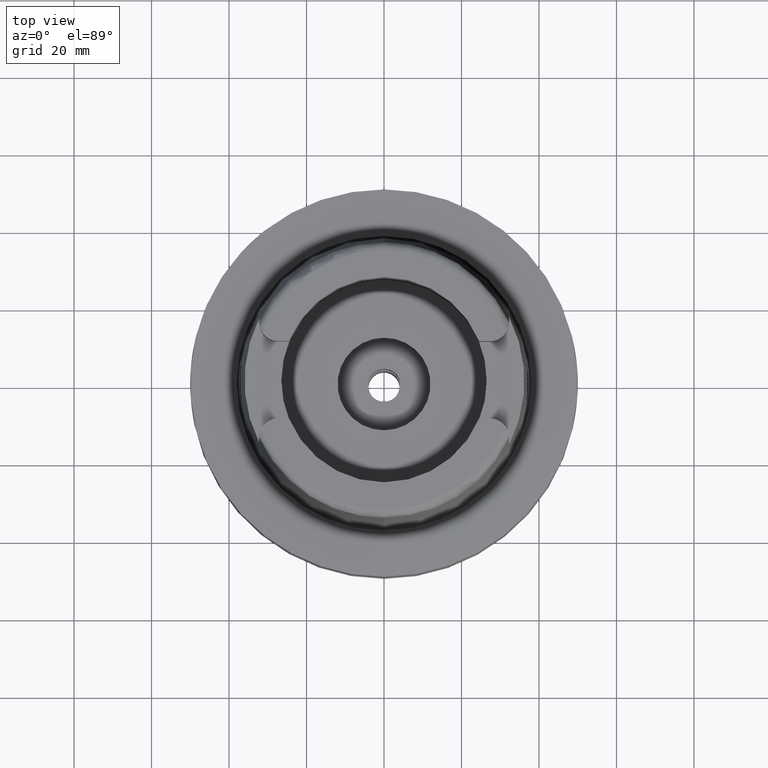
[diagram: clean part render]
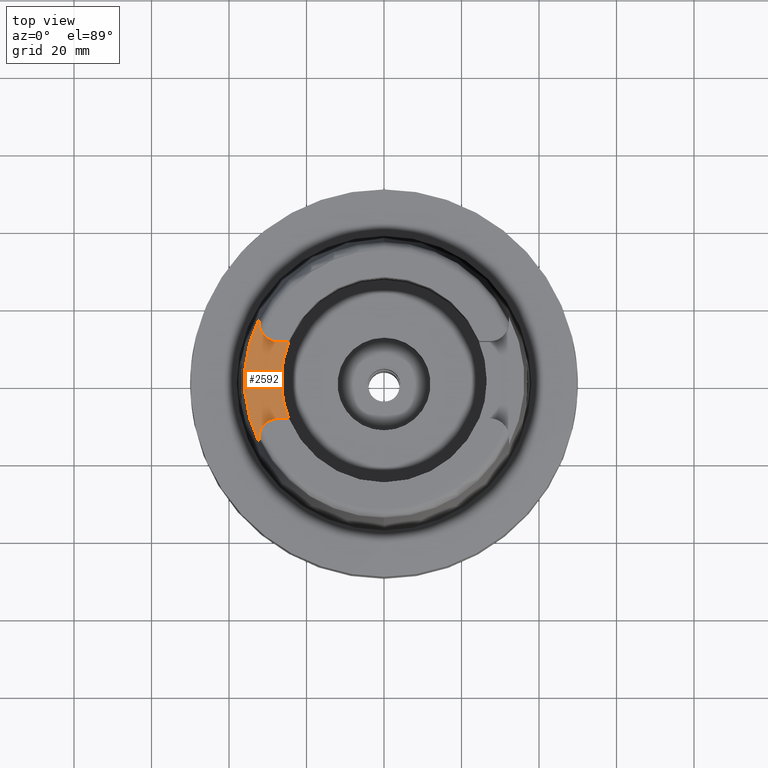
[diagram: same view with one face highlighted and labeled with its STEP entity id]
A machine part, top view. The second image highlights one B-rep face of the part: STEP entity #2592.
In plain terms, the highlighted planar face has unit normal (0, 0, 1).
Its self-contained STEP definition (entity closure, byte-faithful):
#100=CARTESIAN_POINT('',(0.E0,0.E0,4.E1));
#101=DIRECTION('',(0.E0,0.E0,1.E0));
#102=DIRECTION('',(-9.259134021805E-1,3.777358490566E-1,0.E0));
#103=AXIS2_PLACEMENT_3D('',#100,#101,#102);
#108=DIRECTION('',(-1.E0,1.435733797137E-13,0.E0));
#109=VECTOR('',#108,2.833294842218E0);
#110=CARTESIAN_POINT('',(-2.453670515778E1,-1.001E1,4.E1));
#111=LINE('',#110,#109);
#115=CARTESIAN_POINT('',(-2.737E1,-1.489E1,4.E1));
#116=DIRECTION('',(0.E0,0.E0,1.E0));
#117=DIRECTION('',(0.E0,1.E0,0.E0));
#118=AXIS2_PLACEMENT_3D('',#115,#116,#117);
#123=DIRECTION('',(1.119083709708E-6,-9.999999999994E-1,-1.731560047849E-13));
#124=VECTOR('',#123,1.107940431483E0);
#125=CARTESIAN_POINT('',(-3.225E1,-1.489E1,4.E1));
#126=LINE('',#125,#124);
#130=CARTESIAN_POINT('',(0.E0,0.E0,4.E1));
#131=DIRECTION('',(0.E0,0.E0,-1.E0));
#132=DIRECTION('',(-8.958345712660E-1,-4.443876921391E-1,0.E0));
#133=AXIS2_PLACEMENT_3D('',#130,#131,#132);
#138=DIRECTION('',(4.825266097351E-6,-9.999999999884E-1,1.731606717193E-13));
#139=VECTOR('',#138,1.107910570861E0);
#140=CARTESIAN_POINT('',(-3.225000534596E1,1.599791057085E1,4.E1));
#141=LINE('',#140,#139);
#145=CARTESIAN_POINT('',(-2.737E1,1.489E1,4.E1));
#146=DIRECTION('',(0.E0,0.E0,1.E0));
#147=DIRECTION('',(-1.E0,-1.164824156984E-14,0.E0));
#148=AXIS2_PLACEMENT_3D('',#145,#146,#147);
#153=DIRECTION('',(1.E0,1.442003377037E-13,0.E0));
#154=VECTOR('',#153,2.833294842218E0);
#155=CARTESIAN_POINT('',(-2.737E1,1.001E1,4.E1));
#156=LINE('',#155,#154);
#2209=CARTESIAN_POINT('',(-2.737E1,1.001E1,4.E1));
#2210=VERTEX_POINT('',#2209);
#2211=CARTESIAN_POINT('',(-3.225E1,1.489E1,4.E1));
#2212=VERTEX_POINT('',#2211);
#2215=CARTESIAN_POINT('',(-2.453670515778E1,1.001E1,4.E1));
#2216=VERTEX_POINT('',#2215);
#2217=CARTESIAN_POINT('',(-2.453670515778E1,-1.001E1,4.E1));
#2218=VERTEX_POINT('',#2217);
#2223=CARTESIAN_POINT('',(-2.737E1,-1.001E1,4.E1));
#2224=VERTEX_POINT('',#2223);
#2225=CARTESIAN_POINT('',(-3.225E1,-1.489E1,4.E1));
#2226=VERTEX_POINT('',#2225);
#2227=CARTESIAN_POINT('',(-3.224999876012E1,-1.599794043148E1,4.E1));
#2228=VERTEX_POINT('',#2227);
#2229=CARTESIAN_POINT('',(-3.224999999999E1,1.599793480981E1,4.E1));
#2230=VERTEX_POINT('',#2229);
#2572=CARTESIAN_POINT('',(0.E0,0.E0,4.E1));
#2573=DIRECTION('',(0.E0,0.E0,1.E0));
#2574=DIRECTION('',(0.E0,1.E0,0.E0));
#2575=AXIS2_PLACEMENT_3D('',#2572,#2573,#2574);
#2576=PLANE('',#2575);
#2577=ORIENTED_EDGE('',*,*,#2555,.T.);
#2579=ORIENTED_EDGE('',*,*,#2578,.T.);
#2581=ORIENTED_EDGE('',*,*,#2580,.T.);
#2583=ORIENTED_EDGE('',*,*,#2582,.T.);
#2585=ORIENTED_EDGE('',*,*,#2584,.T.);
#2587=ORIENTED_EDGE('',*,*,#2586,.T.);
#2588=ORIENTED_EDGE('',*,*,#2527,.T.);
#2589=ORIENTED_EDGE('',*,*,#2544,.T.);
#2590=EDGE_LOOP('',(#2577,#2579,#2581,#2583,#2585,#2587,#2588,#2589));
#2591=FACE_OUTER_BOUND('',#2590,.F.);
#104=CIRCLE('',#103,2.65E1);
#119=CIRCLE('',#118,4.88E0);
#134=CIRCLE('',#133,3.599995025244E1);
#149=CIRCLE('',#148,4.88E0);
#2527=EDGE_CURVE('',#2212,#2210,#149,.T.);
#2544=EDGE_CURVE('',#2210,#2216,#156,.T.);
#2555=EDGE_CURVE('',#2216,#2218,#104,.T.);
#2578=EDGE_CURVE('',#2218,#2224,#111,.T.);
#2580=EDGE_CURVE('',#2224,#2226,#119,.T.);
#2582=EDGE_CURVE('',#2226,#2228,#126,.T.);
#2584=EDGE_CURVE('',#2228,#2230,#134,.T.);
#2586=EDGE_CURVE('',#2230,#2212,#141,.T.);
#2592=ADVANCED_FACE('',(#2591),#2576,.T.);